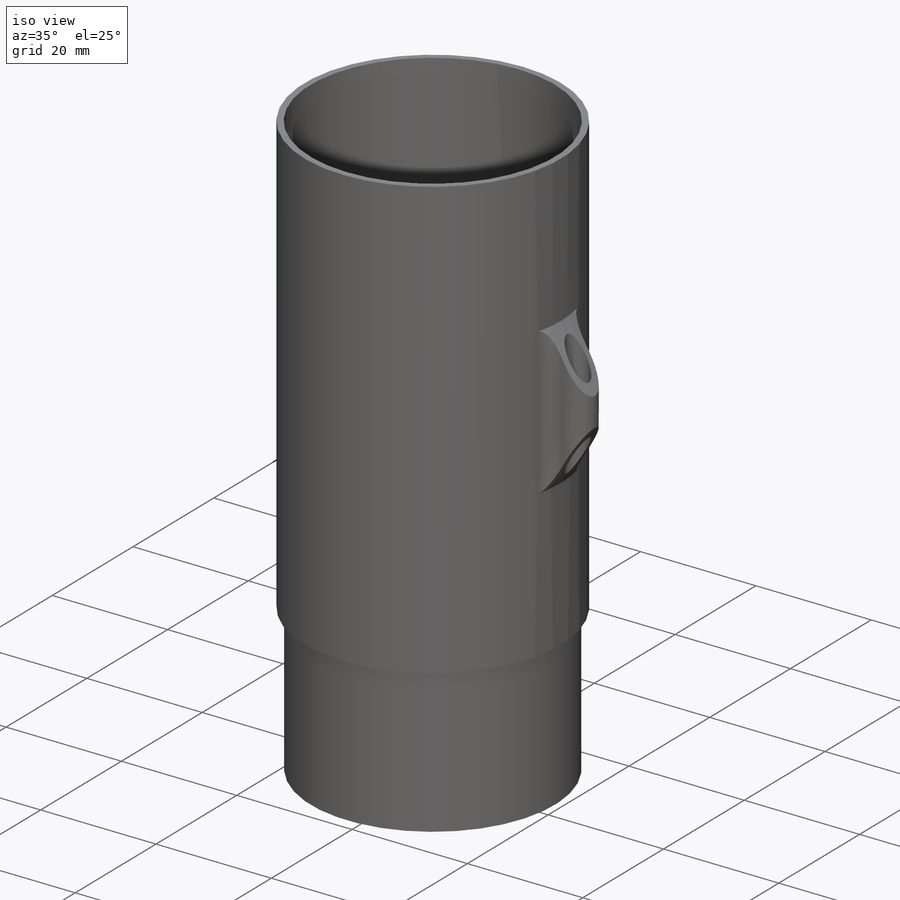
[diagram: iso view]
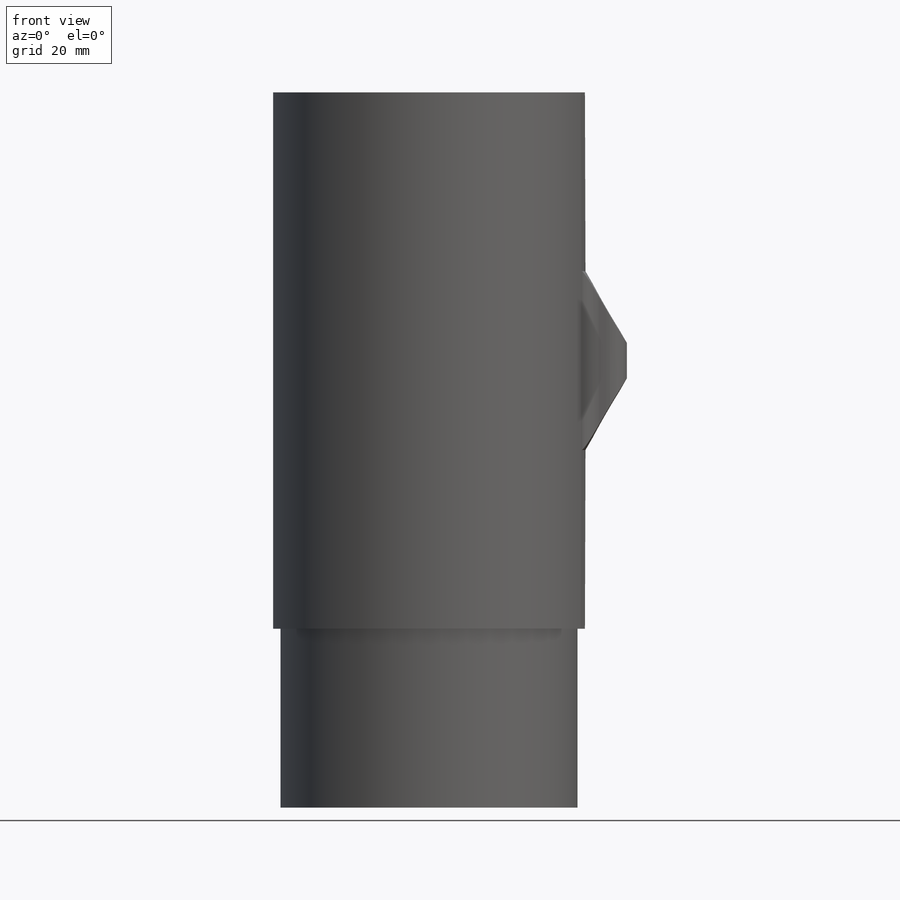
[diagram: front view]
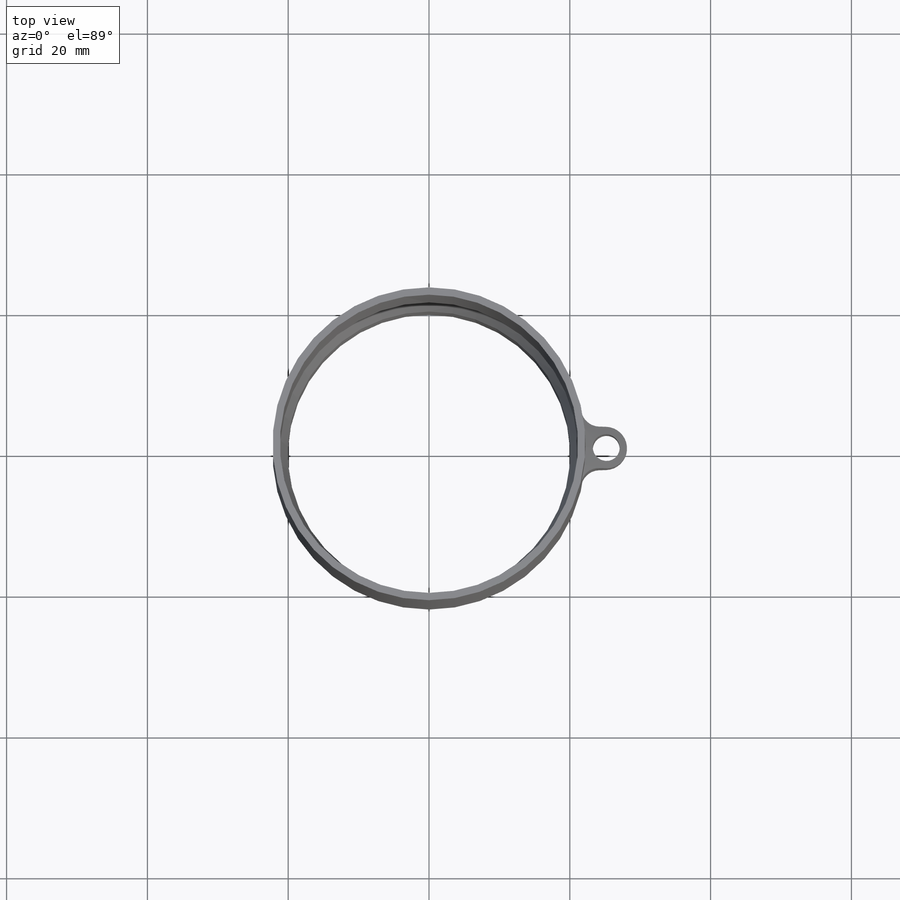
[diagram: top view]
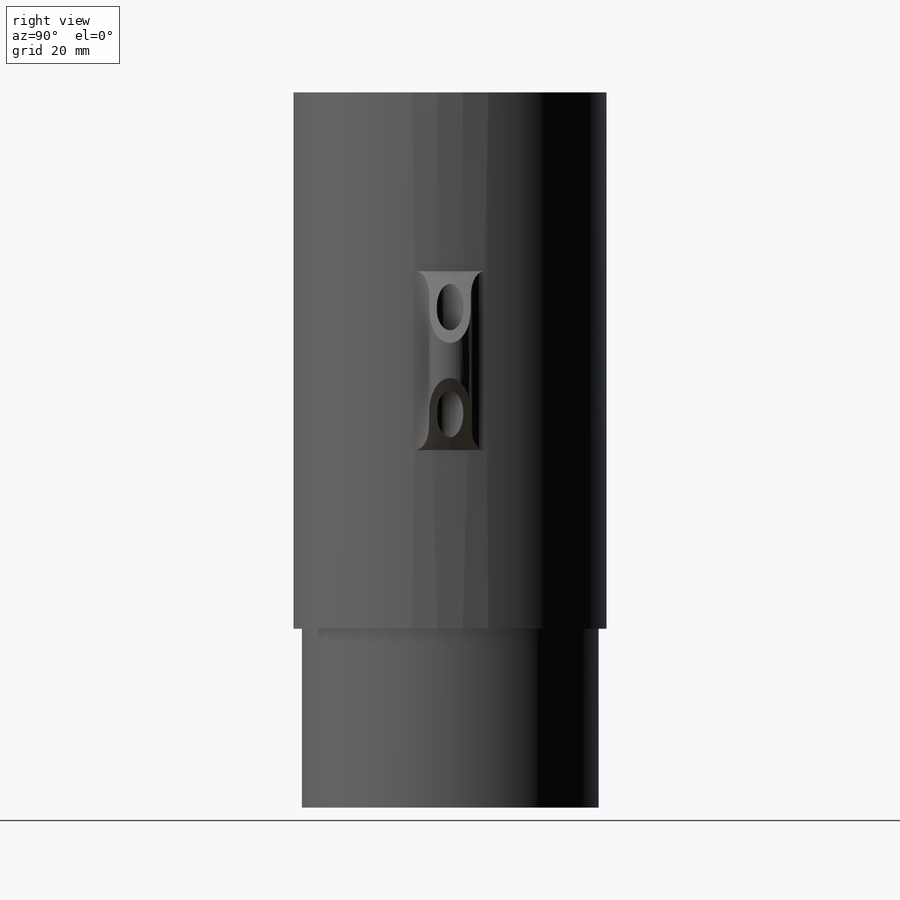
[diagram: right view]
SOLIDWORKS PART (.sldprt)
format: sldprt  version: not decoded by parser v0  size: 195,584 bytes
history: native  units: mm
features: sketch x3, material x1, revolve x1, extrude x1, fillet x1, cut_revolve x1 (+16 scaffold rows collapsed)
feature tree (24):
  scaffold x16  (default folders/planes/origin — collapsed)
  material  "Material <not specified>"
  sketch  "Sketch1"  dims[c1.D1=42.2402mm c1.D2=44.45mm c1.D3=25.4mm c1.D4=101.6mm c1.D5=1.0414mm c1.D6=1.0414mm c1.D7=1.1049mm c2.D7=15.0deg]
  revolve  "Revolve1"  Angle=360deg
  sketch  "Sketch2"  dims[c1.D1=3.81mm c1.D3=3.81mm c1.D2=25.1714mm c2.D3=1.0414mm]
  extrude  "Boss-Extrude1"  Depth=25.4mm
  fillet  "Fillet1"  Radius=2.54mm
  sketch  "Sketch3"  dims[c1.D1=~9.648718mm c2.D1=30.0deg c3.D1=~11.174192mm c4.D1=60.0deg]
  cut_revolve  "Cut-Revolve2"  Angle=360deg
decode coverage: 7 of 7 modeling features carry decoded parameters
note: ~ marks probable driven/reference dimensions
note: suppression state not decoded; provenance and decode notes live in map.json
